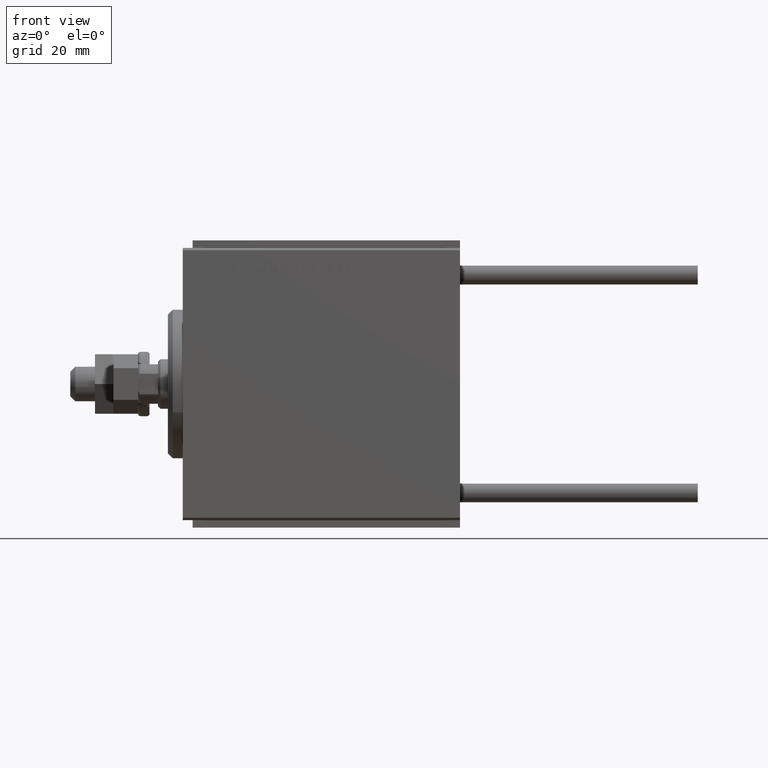
[diagram: clean part render]
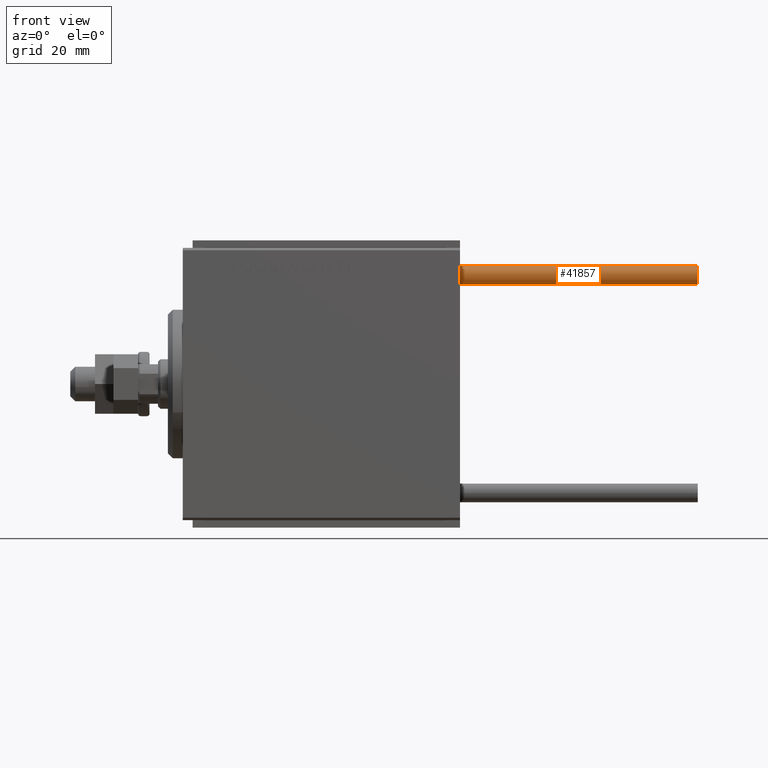
[diagram: same view with one face highlighted and labeled with its STEP entity id]
A machine part, front view. The second image highlights one B-rep face of the part: STEP entity #41857.
In plain terms, the highlighted cylindrical surface (edge-blend (fillet) strip) has radius 1.9 mm, axis along (-1, -0, 0).
Its self-contained STEP definition (entity closure, byte-faithful):
#79 = CARTESIAN_POINT ( 'NONE',  ( -1.899999999999999467, 0.000000000000000000, 48.00000000000000000 ) ) ;
#2416 = CARTESIAN_POINT ( 'NONE',  ( -1.899999999999999467, 0.000000000000000000, 48.00000000000000000 ) ) ;
#3236 = CARTESIAN_POINT ( 'NONE',  ( 1.899999999999999467, 2.326828918379970872E-16, 0.000000000000000000 ) ) ;
#4077 = DIRECTION ( 'NONE',  ( -0.000000000000000000, -0.000000000000000000, -1.000000000000000000 ) ) ;
#4264 = EDGE_CURVE ( 'NONE', #17567, #49145, #25026, .T. ) ;
#7266 = CIRCLE ( 'NONE', #23570, 1.899999999999999467 ) ;
#11688 = ORIENTED_EDGE ( 'NONE', *, *, #35325, .T. ) ;
#14273 = VECTOR ( 'NONE', #27363, 1000.000000000000000 ) ;
#15081 = EDGE_CURVE ( 'NONE', #23599, #17567, #7266, .T. ) ;
#16230 = ORIENTED_EDGE ( 'NONE', *, *, #4264, .F. ) ;
#16866 = EDGE_LOOP ( 'NONE', ( #16230, #30670, #41985, #11688 ) ) ;
#17567 = VERTEX_POINT ( 'NONE', #48972 ) ;
#19242 = VECTOR ( 'NONE', #43869, 1000.000000000000000 ) ;
#19377 = CARTESIAN_POINT ( 'NONE',  ( -1.899999999999999467, 0.000000000000000000, 0.000000000000000000 ) ) ;
#23570 = AXIS2_PLACEMENT_3D ( 'NONE', #50334, #48734, #33220 ) ;
#23599 = VERTEX_POINT ( 'NONE', #2416 ) ;
#25026 = LINE ( 'NONE', #28361, #19242 ) ;
#25309 = AXIS2_PLACEMENT_3D ( 'NONE', #38924, #38410, #38670 ) ;
#27363 = DIRECTION ( 'NONE',  ( -0.000000000000000000, -0.000000000000000000, -1.000000000000000000 ) ) ;
#28361 = CARTESIAN_POINT ( 'NONE',  ( 1.899999999999999467, 2.326828918379970872E-16, 48.00000000000000000 ) ) ;
#30670 = ORIENTED_EDGE ( 'NONE', *, *, #15081, .F. ) ;
#31433 = LINE ( 'NONE', #79, #14273 ) ;
#33220 = DIRECTION ( 'NONE',  ( 1.000000000000000000, 0.000000000000000000, 0.000000000000000000 ) ) ;
#34092 = VERTEX_POINT ( 'NONE', #19377 ) ;
#34481 = AXIS2_PLACEMENT_3D ( 'NONE', #46373, #4077, #35417 ) ;
#35325 = EDGE_CURVE ( 'NONE', #34092, #49145, #45738, .T. ) ;
#35417 = DIRECTION ( 'NONE',  ( -1.000000000000000000, 0.000000000000000000, 0.000000000000000000 ) ) ;
#38214 = FACE_OUTER_BOUND ( 'NONE', #16866, .T. ) ;
#38410 = DIRECTION ( 'NONE',  ( 0.000000000000000000, 0.000000000000000000, 1.000000000000000000 ) ) ;
#38670 = DIRECTION ( 'NONE',  ( 1.000000000000000000, 0.000000000000000000, 0.000000000000000000 ) ) ;
#38924 = CARTESIAN_POINT ( 'NONE',  ( 0.000000000000000000, 0.000000000000000000, 0.000000000000000000 ) ) ;
#38982 = CYLINDRICAL_SURFACE ( 'NONE', #34481, 1.899999999999999467 ) ;
#41857 = ADVANCED_FACE ( 'NONE', ( #38214 ), #38982, .T. ) ;
#41985 = ORIENTED_EDGE ( 'NONE', *, *, #45945, .T. ) ;
#43869 = DIRECTION ( 'NONE',  ( -0.000000000000000000, -0.000000000000000000, -1.000000000000000000 ) ) ;
#45738 = CIRCLE ( 'NONE', #25309, 1.899999999999999467 ) ;
#45945 = EDGE_CURVE ( 'NONE', #23599, #34092, #31433, .T. ) ;
#46373 = CARTESIAN_POINT ( 'NONE',  ( 0.000000000000000000, 0.000000000000000000, 48.00000000000000000 ) ) ;
#48734 = DIRECTION ( 'NONE',  ( 0.000000000000000000, 0.000000000000000000, 1.000000000000000000 ) ) ;
#48972 = CARTESIAN_POINT ( 'NONE',  ( 1.899999999999999467, 2.326828918379970872E-16, 48.00000000000000000 ) ) ;
#49145 = VERTEX_POINT ( 'NONE', #3236 ) ;
#50334 = CARTESIAN_POINT ( 'NONE',  ( 0.000000000000000000, 0.000000000000000000, 48.00000000000000000 ) ) ;